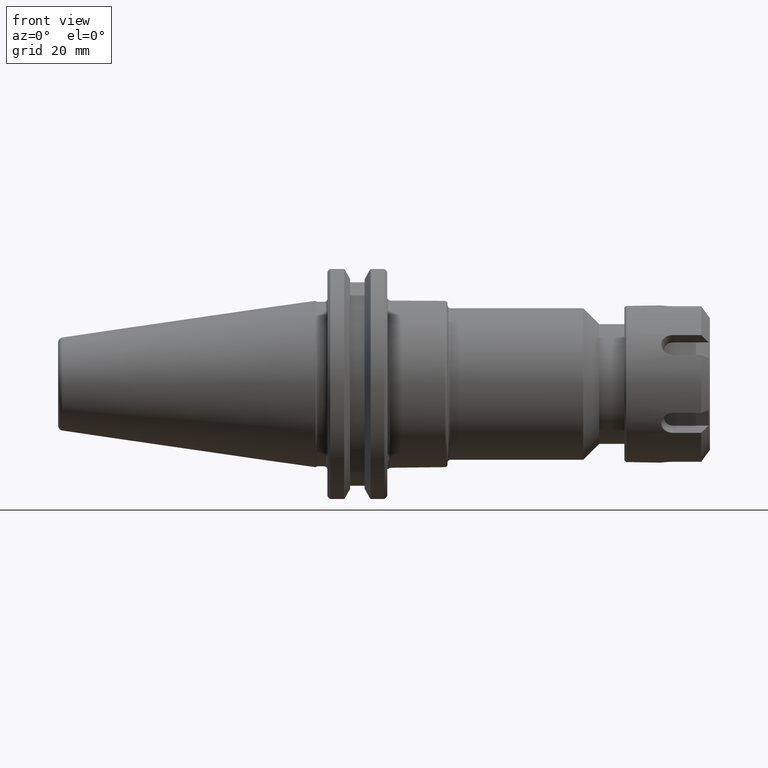
[diagram: clean part render]
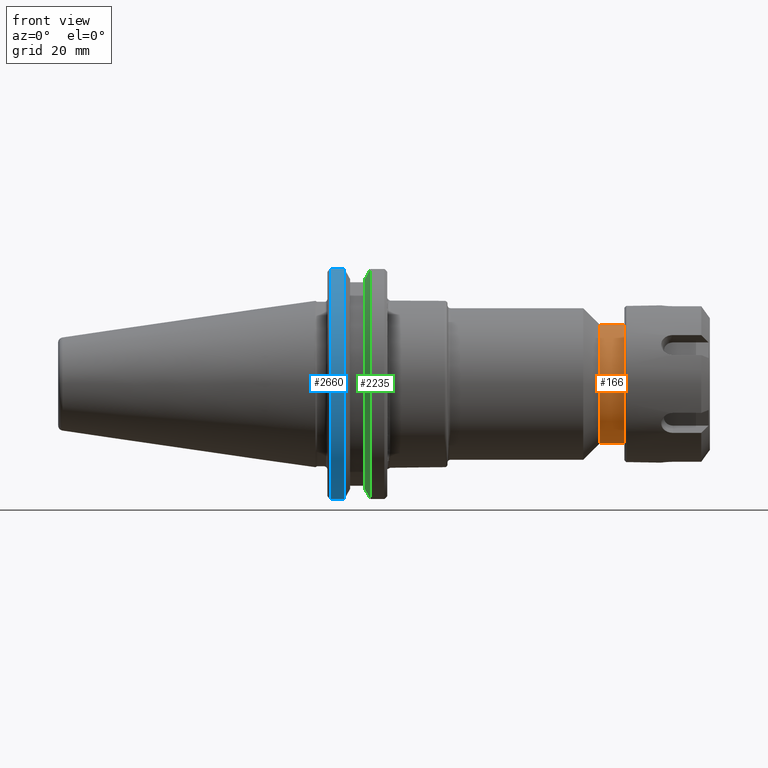
[diagram: same view with three faces highlighted in distinct colors, each labeled with its STEP entity id]
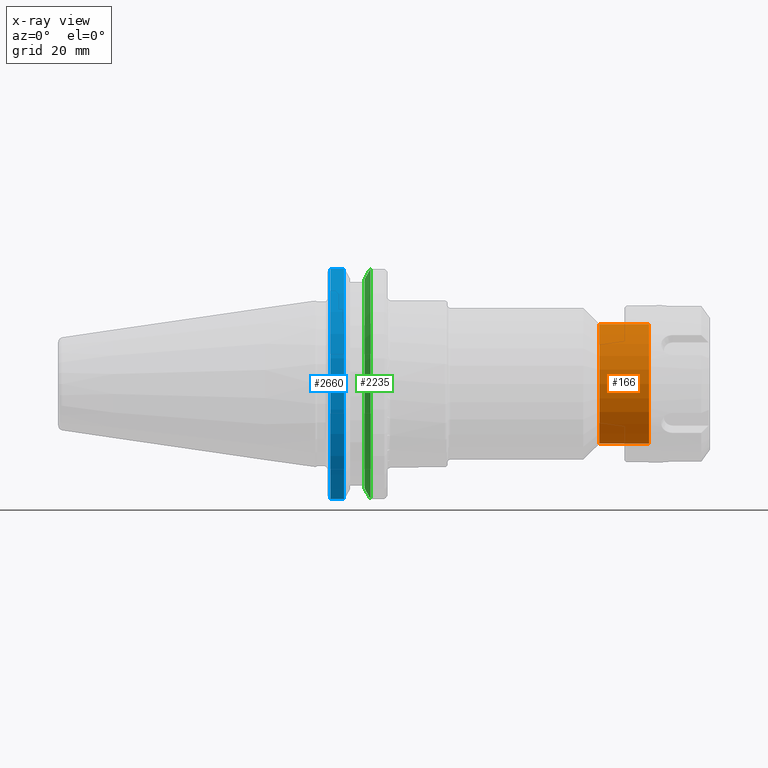
[diagram: x-ray of the same camera — body ghosted, the three highlighted faces saturated]
A machine part, front view with three faces highlighted in distinct colors.
The next image is the same camera in x-ray (body ghosted, the three faces saturated) — at least one of them is partly hidden behind the body in this view.
Their STEP definitions:

[orange] entity #166 — the highlighted cylindrical surface (bore or boss wall) has radius 16 mm, axis along (1, 0, 0).
#124=CARTESIAN_POINT('',(3.485000000000001,0.62992125984252,7.714311E-017));
#125=VERTEX_POINT('',#124);
#126=CARTESIAN_POINT('',(3.485000000000001,0.0,0.0));
#127=DIRECTION('',(1.0,0.0,0.0));
#128=DIRECTION('',(0.0,-1.0,0.0));
#129=AXIS2_PLACEMENT_3D('',#126,#127,#128);
#130=CIRCLE('',#129,0.62992125984252);
#131=EDGE_CURVE('',#125,#125,#130,.T.);
#147=CARTESIAN_POINT('',(3.245000000000001,0.0,0.0));
#148=DIRECTION('',(1.0,0.0,0.0));
#149=DIRECTION('',(0.0,1.0,0.0));
#150=AXIS2_PLACEMENT_3D('',#147,#148,#149);
#151=CYLINDRICAL_SURFACE('',#150,0.62992125984252);
#152=CARTESIAN_POINT('',(2.965000000000001,0.62992125984252,0.0));
#153=VERTEX_POINT('',#152);
#154=CARTESIAN_POINT('',(2.965000000000001,0.0,0.0));
#155=DIRECTION('',(1.0,0.0,0.0));
#156=DIRECTION('',(0.0,1.0,0.0));
#157=AXIS2_PLACEMENT_3D('',#154,#155,#156);
#158=CIRCLE('',#157,0.62992125984252);
#159=EDGE_CURVE('',#153,#153,#158,.T.);
#160=ORIENTED_EDGE('',*,*,#159,.T.);
#161=EDGE_LOOP('',(#160));
#162=FACE_OUTER_BOUND('',#161,.T.);
#163=ORIENTED_EDGE('',*,*,#131,.F.);
#164=EDGE_LOOP('',(#163));
#165=FACE_BOUND('',#164,.T.);
#166=ADVANCED_FACE('',(#162,#165),#151,.T.);

[blue] entity #2660 — the highlighted cylindrical surface (partial cylindrical patch) has radius 31.75 mm, axis along (1, 0, 0).
#2060=CARTESIAN_POINT('',(0.155000000000203,-0.344098106797811,-1.201705659842776));
#2061=VERTEX_POINT('',#2060);
#2075=CARTESIAN_POINT('',(0.155000000000203,-0.344098106797854,1.201705659842764));
#2076=VERTEX_POINT('',#2075);
#2077=CARTESIAN_POINT('',(0.155000000000203,0.0,0.0));
#2078=DIRECTION('',(-1.0,-1.624514E-013,0.0));
#2079=DIRECTION('',(1.624514E-013,-1.0,0.0));
#2080=AXIS2_PLACEMENT_3D('',#2077,#2078,#2079);
#2081=CIRCLE('',#2080,1.25);
#2082=EDGE_CURVE('',#2061,#2076,#2081,.T.);
#2109=CARTESIAN_POINT('',(0.299526127773361,-0.344098106797811,-1.201705659842776));
#2110=VERTEX_POINT('',#2109);
#2124=CARTESIAN_POINT('',(0.299526127773361,-0.344098106797811,-1.201705659842776));
#2125=DIRECTION('',(-1.0,0.0,0.0));
#2126=VECTOR('',#2125,0.144526127773158);
#2127=LINE('',#2124,#2126);
#2128=EDGE_CURVE('',#2110,#2061,#2127,.T.);
#2165=CARTESIAN_POINT('',(0.299526127773361,-0.344098106797854,1.201705659842764));
#2166=VERTEX_POINT('',#2165);
#2167=CARTESIAN_POINT('',(0.155000000000203,-0.344098106797854,1.201705659842764));
#2168=DIRECTION('',(1.0,0.0,0.0));
#2169=VECTOR('',#2168,0.144526127773158);
#2170=LINE('',#2167,#2169);
#2171=EDGE_CURVE('',#2076,#2166,#2170,.T.);
#2591=CARTESIAN_POINT('',(0.299526127773361,0.0,0.0));
#2592=DIRECTION('',(-1.0,-1.624514E-013,0.0));
#2593=DIRECTION('',(-1.624514E-013,1.0,0.0));
#2594=AXIS2_PLACEMENT_3D('',#2591,#2592,#2593);
#2595=CIRCLE('',#2594,1.25);
#2596=EDGE_CURVE('',#2110,#2166,#2595,.T.);
#2649=CARTESIAN_POINT('',(0.4375,0.0,0.0));
#2650=DIRECTION('',(1.0,0.0,0.0));
#2651=DIRECTION('',(-1.624514E-013,1.0,0.0));
#2652=AXIS2_PLACEMENT_3D('',#2649,#2650,#2651);
#2653=CYLINDRICAL_SURFACE('',#2652,1.25);
#2654=ORIENTED_EDGE('',*,*,#2128,.F.);
#2655=ORIENTED_EDGE('',*,*,#2596,.T.);
#2656=ORIENTED_EDGE('',*,*,#2171,.F.);
#2657=ORIENTED_EDGE('',*,*,#2082,.F.);
#2658=EDGE_LOOP('',(#2654,#2655,#2656,#2657));
#2659=FACE_OUTER_BOUND('',#2658,.T.);
#2660=ADVANCED_FACE('',(#2659),#2653,.T.);

[green] entity #2235 — the highlighted conical surface has half-angle 60 deg.
#1248=CARTESIAN_POINT('',(0.513850000000028,-0.319999999999719,1.094499578944604));
#1249=VERTEX_POINT('',#1248);
#1256=CARTESIAN_POINT('',(0.563230740453856,-0.319999999999719,1.183345976945419));
#1257=VERTEX_POINT('',#1256);
#1258=CARTESIAN_POINT('',(0.563230740453856,-0.319999999999719,1.183345976945419));
#1259=CARTESIAN_POINT('',(0.537577332827661,-0.319999999999719,1.137317012232563));
#1260=CARTESIAN_POINT('',(0.51384999999979,-0.319999999999719,1.094499578944176));
#1268=(BOUNDED_CURVE()B_SPLINE_CURVE(2,(#1258,#1259,#1260),.UNSPECIFIED.,.F.,.U.)B_SPLINE_CURVE_WITH_KNOTS((3,3),(0.070089065332177,0.330892155380642),.UNSPECIFIED.)CURVE()GEOMETRIC_REPRESENTATION_ITEM()RATIONAL_B_SPLINE_CURVE((1.000379364129304,1.000895493568252,1.0))REPRESENTATION_ITEM(''));
#1269=EDGE_CURVE('',#1257,#1249,#1268,.T.);
#1438=CARTESIAN_POINT('',(0.563230740453848,-0.31999999999969,-1.183345976945412));
#1439=VERTEX_POINT('',#1438);
#1446=CARTESIAN_POINT('',(0.513850000000028,-0.319999999999698,-1.09449957894461));
#1447=VERTEX_POINT('',#1446);
#1448=CARTESIAN_POINT('',(0.51384999999979,-0.319999999999698,-1.094499578944182));
#1449=CARTESIAN_POINT('',(0.537577332827571,-0.319999999999694,-1.137317012232408));
#1450=CARTESIAN_POINT('',(0.563230740453848,-0.31999999999969,-1.183345976945412));
#1458=(BOUNDED_CURVE()B_SPLINE_CURVE(2,(#1448,#1449,#1450),.UNSPECIFIED.,.F.,.U.)B_SPLINE_CURVE_WITH_KNOTS((3,3),(0.0,0.26080309004864),.UNSPECIFIED.)CURVE()GEOMETRIC_REPRESENTATION_ITEM()RATIONAL_B_SPLINE_CURVE((1.0,1.000895493568002,1.000379364129197))REPRESENTATION_ITEM(''));
#1459=EDGE_CURVE('',#1447,#1439,#1458,.T.);
#1889=CARTESIAN_POINT('',(0.577173872226652,-0.34409810679788,-1.201705659842757));
#1890=VERTEX_POINT('',#1889);
#1897=CARTESIAN_POINT('',(0.577173872226863,-0.344098106798045,-1.201705659842899));
#1898=CARTESIAN_POINT('',(0.570095294562266,-0.331931523166107,-1.192436275351525));
#1899=CARTESIAN_POINT('',(0.563230740453848,-0.31999999999969,-1.183345976945412));
#1907=(BOUNDED_CURVE()B_SPLINE_CURVE(2,(#1897,#1898,#1899),.UNSPECIFIED.,.F.,.U.)B_SPLINE_CURVE_WITH_KNOTS((3,3),(0.0,0.081357522606563),.UNSPECIFIED.)CURVE()GEOMETRIC_REPRESENTATION_ITEM()RATIONAL_B_SPLINE_CURVE((1.0,1.000360586802758,1.000571469392775))REPRESENTATION_ITEM(''));
#1908=EDGE_CURVE('',#1890,#1439,#1907,.T.);
#1930=CARTESIAN_POINT('',(0.577173872226652,-0.344098106797854,1.201705659842764));
#1931=VERTEX_POINT('',#1930);
#1938=CARTESIAN_POINT('',(0.577173872226652,0.0,0.0));
#1939=DIRECTION('',(1.0,1.624514E-013,0.0));
#1940=DIRECTION('',(-1.624514E-013,1.0,0.0));
#1941=AXIS2_PLACEMENT_3D('',#1938,#1939,#1940);
#1942=CIRCLE('',#1941,1.25);
#1943=EDGE_CURVE('',#1931,#1890,#1942,.T.);
#2198=CARTESIAN_POINT('',(0.563230740453856,-0.319999999999719,1.183345976945419));
#2199=CARTESIAN_POINT('',(0.570095294562269,-0.331931523166115,1.192436275351529));
#2200=CARTESIAN_POINT('',(0.577173872226859,-0.344098106798029,1.201705659842897));
#2208=(BOUNDED_CURVE()B_SPLINE_CURVE(2,(#2198,#2199,#2200),.UNSPECIFIED.,.F.,.U.)B_SPLINE_CURVE_WITH_KNOTS((3,3),(0.310567973944384,0.391925496550844),.UNSPECIFIED.)CURVE()GEOMETRIC_REPRESENTATION_ITEM()RATIONAL_B_SPLINE_CURVE((1.000571469392525,1.0003605868026,1.0))REPRESENTATION_ITEM(''));
#2209=EDGE_CURVE('',#1257,#1931,#2208,.T.);
#2216=CARTESIAN_POINT('',(0.59790647304228,3.154247E-013,0.0));
#2217=DIRECTION('',(1.0,1.624514E-013,0.0));
#2218=DIRECTION('',(-1.624821E-013,1.0,0.0));
#2219=AXIS2_PLACEMENT_3D('',#2216,#2217,#2218);
#2220=CONICAL_SURFACE('',#2219,1.285909917985699,59.999999999990706);
#2221=ORIENTED_EDGE('',*,*,#1908,.F.);
#2222=ORIENTED_EDGE('',*,*,#1943,.F.);
#2223=ORIENTED_EDGE('',*,*,#2209,.F.);
#2224=ORIENTED_EDGE('',*,*,#1269,.T.);
#2225=CARTESIAN_POINT('',(0.513849999999976,3.017696E-013,0.0));
#2226=DIRECTION('',(-1.0,-1.624821E-013,0.0));
#2227=DIRECTION('',(-1.624821E-013,1.0,0.0));
#2228=AXIS2_PLACEMENT_3D('',#2225,#2226,#2227);
#2229=CIRCLE('',#2228,1.140319835971438);
#2230=EDGE_CURVE('',#1447,#1249,#2229,.T.);
#2231=ORIENTED_EDGE('',*,*,#2230,.F.);
#2232=ORIENTED_EDGE('',*,*,#1459,.T.);
#2233=EDGE_LOOP('',(#2221,#2222,#2223,#2224,#2231,#2232));
#2234=FACE_OUTER_BOUND('',#2233,.T.);
#2235=ADVANCED_FACE('',(#2234),#2220,.T.);